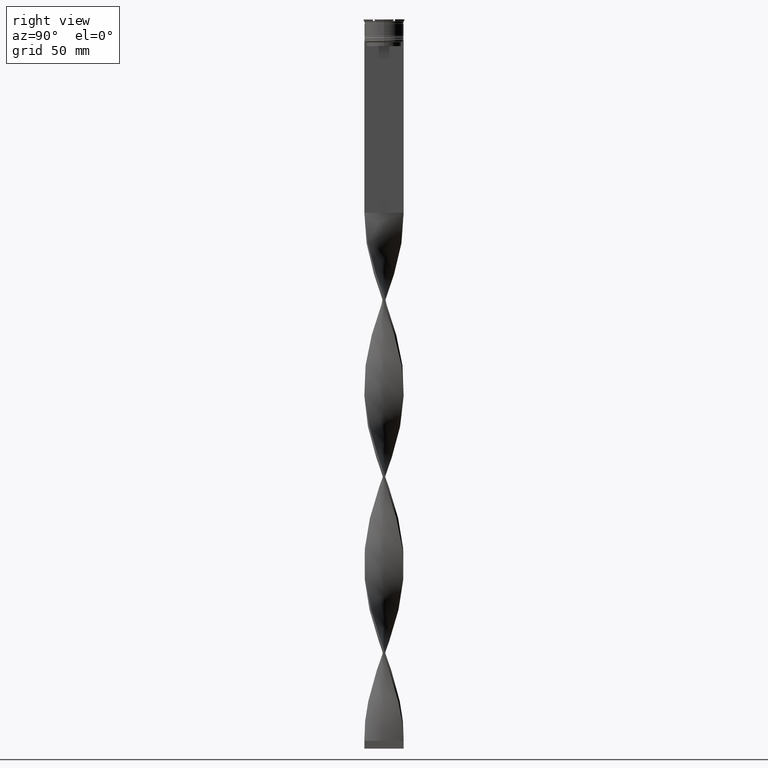
[diagram: clean part render]
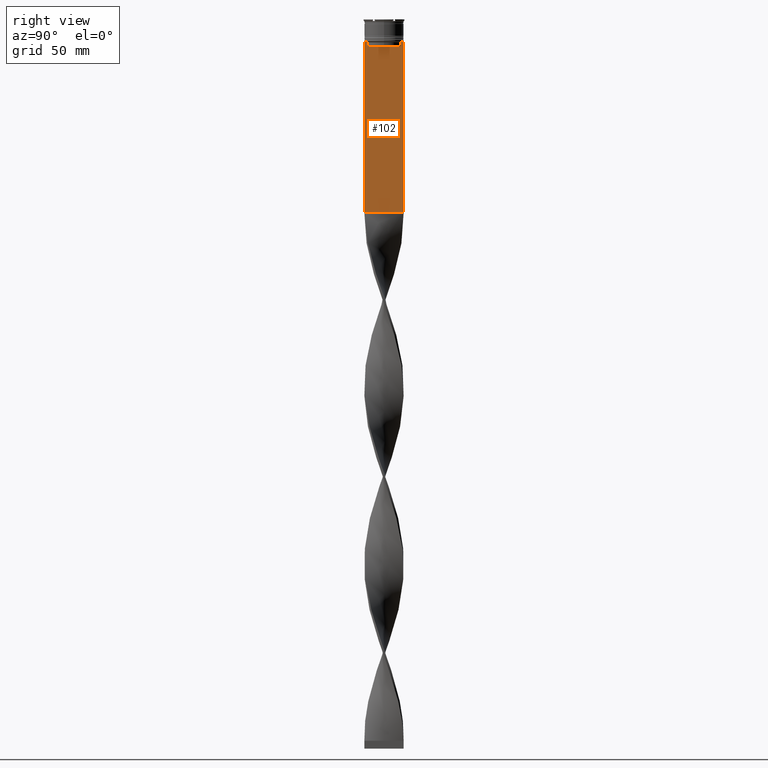
[diagram: same view with one face highlighted and labeled with its STEP entity id]
A machine part, right view. The second image highlights one B-rep face of the part: STEP entity #102.
In plain terms, the highlighted planar face has unit normal (-1, 0, 0).
Its self-contained STEP definition (entity closure, byte-faithful):
#3 = DIRECTION ( 'NONE',  ( 0.000000000000000000, 0.000000000000000000, -1.000000000000000000 ) ) ;
#58 = LINE ( 'NONE', #842, #1563 ) ;
#74 = LINE ( 'NONE', #2873, #222 ) ;
#88 = DIRECTION ( 'NONE',  ( 0.000000000000000000, -1.000000000000000000, 0.000000000000000000 ) ) ;
#102 = ADVANCED_FACE ( 'NONE', ( #147 ), #2038, .F. ) ;
#114 = VERTEX_POINT ( 'NONE', #244 ) ;
#147 = FACE_OUTER_BOUND ( 'NONE', #4185, .T. ) ;
#152 = ORIENTED_EDGE ( 'NONE', *, *, #963, .T. ) ;
#222 = VECTOR ( 'NONE', #3, 1000.000000000000000 ) ;
#224 = CARTESIAN_POINT ( 'NONE',  ( 0.7500000000000002220, -12.50000000000000000, 11.04495957273638673 ) ) ;
#244 = CARTESIAN_POINT ( 'NONE',  ( 0.7500000000000002220, -12.50000000000000000, -14.00000000000000178 ) ) ;
#345 = CARTESIAN_POINT ( 'NONE',  ( 0.7500000000000002220, 12.50000000000000000, -123.0000000000000000 ) ) ;
#349 = CARTESIAN_POINT ( 'NONE',  ( 0.7500000000000002220, -11.37530219378809093, -14.00000000000000178 ) ) ;
#351 = CARTESIAN_POINT ( 'NONE',  ( 0.7500000000000002220, -12.50000000000000000, -14.00000000000000178 ) ) ;
#394 = CARTESIAN_POINT ( 'NONE',  ( 0.7500000000000002220, -12.37729776647553059, -14.00000000000000178 ) ) ;
#518 = CARTESIAN_POINT ( 'NONE',  ( 0.7500000000000002220, 10.87416663473574197, 0.000000000000000000 ) ) ;
#539 = VERTEX_POINT ( 'NONE', #4377 ) ;
#584 = DIRECTION ( 'NONE',  ( 0.000000000000000000, -1.000000000000000000, 0.000000000000000000 ) ) ;
#628 = CARTESIAN_POINT ( 'NONE',  ( 0.7500000000000002220, 10.90000000000000213, -17.00000000000000000 ) ) ;
#681 = EDGE_CURVE ( 'NONE', #2970, #4597, #2677, .T. ) ;
#740 = VECTOR ( 'NONE', #3219, 1000.000000000000000 ) ;
#747 = ORIENTED_EDGE ( 'NONE', *, *, #2019, .T. ) ;
#753 = CARTESIAN_POINT ( 'NONE',  ( 0.7500000000000002220, -10.87416663473574197, 0.000000000000000000 ) ) ;
#842 = CARTESIAN_POINT ( 'NONE',  ( 0.7500000000000002220, -12.50000000000000000, -14.00000000000000178 ) ) ;
#868 = ORIENTED_EDGE ( 'NONE', *, *, #1578, .T. ) ;
#873 = CARTESIAN_POINT ( 'NONE',  ( 0.7500000000000002220, 12.50000000000000000, -14.00000000000000178 ) ) ;
#903 = ORIENTED_EDGE ( 'NONE', *, *, #4526, .T. ) ;
#963 = EDGE_CURVE ( 'NONE', #4164, #2970, #2384, .T. ) ;
#1057 = DIRECTION ( 'NONE',  ( 0.000000000000000000, -1.000000000000000000, 0.000000000000000000 ) ) ;
#1059 = VECTOR ( 'NONE', #3119, 1000.000000000000000 ) ;
#1091 = CARTESIAN_POINT ( 'NONE',  ( 0.7500000000000002220, 11.04122051153452055, -14.33334204648729404 ) ) ;
#1178 = VERTEX_POINT ( 'NONE', #1495 ) ;
#1233 = CARTESIAN_POINT ( 'NONE',  ( 0.7500000000000002220, -11.20826532207830439, -14.16667499063191826 ) ) ;
#1258 = ORIENTED_EDGE ( 'NONE', *, *, #1665, .T. ) ;
#1293 = DIRECTION ( 'NONE',  ( 0.000000000000000000, 1.000000000000000000, 0.000000000000000000 ) ) ;
#1440 = EDGE_CURVE ( 'NONE', #1178, #3947, #4502, .T. ) ;
#1480 = LINE ( 'NONE', #351, #740 ) ;
#1495 = CARTESIAN_POINT ( 'NONE',  ( 0.7500000000000002220, -12.50000000000000000, -123.0000000000000000 ) ) ;
#1510 = AXIS2_PLACEMENT_3D ( 'NONE', #224, #3464, #4442 ) ;
#1563 = VECTOR ( 'NONE', #88, 1000.000000000000000 ) ;
#1578 = EDGE_CURVE ( 'NONE', #539, #4164, #2931, .T. ) ;
#1656 = CARTESIAN_POINT ( 'NONE',  ( 0.7500000000000002220, -11.37530219378809093, -14.00000000000000178 ) ) ;
#1665 = EDGE_CURVE ( 'NONE', #2132, #3267, #58, .T. ) ;
#1745 = VERTEX_POINT ( 'NONE', #394 ) ;
#1755 = VECTOR ( 'NONE', #584, 1000.000000000000000 ) ;
#1800 = EDGE_CURVE ( 'NONE', #1745, #114, #4342, .T. ) ;
#1856 = CARTESIAN_POINT ( 'NONE',  ( 0.7500000000000002220, -10.87416663473574197, -14.50000000000000000 ) ) ;
#1924 = EDGE_CURVE ( 'NONE', #2132, #3947, #3983, .T. ) ;
#1967 = DIRECTION ( 'NONE',  ( 0.000000000000000000, 0.000000000000000000, -1.000000000000000000 ) ) ;
#1984 = VERTEX_POINT ( 'NONE', #349 ) ;
#2019 = EDGE_CURVE ( 'NONE', #3923, #539, #3284, .T. ) ;
#2038 = PLANE ( 'NONE',  #1510 ) ;
#2132 = VERTEX_POINT ( 'NONE', #873 ) ;
#2221 = DIRECTION ( 'NONE',  ( 0.000000000000000000, -1.000000000000000000, 0.000000000000000000 ) ) ;
#2384 = LINE ( 'NONE', #628, #1755 ) ;
#2430 = EDGE_CURVE ( 'NONE', #1984, #1745, #2548, .T. ) ;
#2440 = EDGE_CURVE ( 'NONE', #114, #1178, #74, .T. ) ;
#2467 = VECTOR ( 'NONE', #1293, 1000.000000000000000 ) ;
#2539 = CARTESIAN_POINT ( 'NONE',  ( 0.7500000000000002220, 10.87416663473574197, -14.50000000000000000 ) ) ;
#2548 = LINE ( 'NONE', #4277, #3276 ) ;
#2569 = CARTESIAN_POINT ( 'NONE',  ( 0.7500000000000002220, -12.50000000000000000, -14.00000000000000178 ) ) ;
#2677 = LINE ( 'NONE', #753, #1059 ) ;
#2685 = CARTESIAN_POINT ( 'NONE',  ( 0.7500000000000002220, 10.87416663473574019, -17.00000000000000000 ) ) ;
#2838 = VECTOR ( 'NONE', #3657, 1000.000000000000000 ) ;
#2873 = CARTESIAN_POINT ( 'NONE',  ( 0.7500000000000002220, -12.50000000000000000, 11.04495957273638673 ) ) ;
#2883 = CARTESIAN_POINT ( 'NONE',  ( 0.7500000000000002220, 11.37530219378809093, -14.00000000000000178 ) ) ;
#2931 = LINE ( 'NONE', #518, #3271 ) ;
#2970 = VERTEX_POINT ( 'NONE', #4584 ) ;
#3008 = B_SPLINE_CURVE_WITH_KNOTS ( 'NONE', 3,
 ( #1856, #4308, #1233, #1656 ),
 .UNSPECIFIED., .F., .F.,
 ( 4, 4 ),
 ( 0.05009718908159448147, 0.05081156920313959630 ),
 .UNSPECIFIED. ) ;
#3119 = DIRECTION ( 'NONE',  ( -0.000000000000000000, -0.000000000000000000, 1.000000000000000000 ) ) ;
#3206 = ORIENTED_EDGE ( 'NONE', *, *, #2430, .T. ) ;
#3219 = DIRECTION ( 'NONE',  ( 0.000000000000000000, -1.000000000000000000, 0.000000000000000000 ) ) ;
#3267 = VERTEX_POINT ( 'NONE', #4445 ) ;
#3271 = VECTOR ( 'NONE', #1967, 1000.000000000000000 ) ;
#3276 = VECTOR ( 'NONE', #1057, 1000.000000000000000 ) ;
#3284 = B_SPLINE_CURVE_WITH_KNOTS ( 'NONE', 3,
 ( #2883, #4307, #1091, #2539 ),
 .UNSPECIFIED., .F., .F.,
 ( 4, 4 ),
 ( 0.01936090553552769281, 0.02006881572333104116 ),
 .UNSPECIFIED. ) ;
#3354 = ORIENTED_EDGE ( 'NONE', *, *, #4570, .T. ) ;
#3464 = DIRECTION ( 'NONE',  ( -1.000000000000000000, 0.000000000000000000, 0.000000000000000000 ) ) ;
#3525 = ORIENTED_EDGE ( 'NONE', *, *, #1924, .F. ) ;
#3543 = CARTESIAN_POINT ( 'NONE',  ( 0.7500000000000002220, 11.37530219378809093, -14.00000000000000178 ) ) ;
#3657 = DIRECTION ( 'NONE',  ( 0.000000000000000000, 0.000000000000000000, -1.000000000000000000 ) ) ;
#3923 = VERTEX_POINT ( 'NONE', #3543 ) ;
#3947 = VERTEX_POINT ( 'NONE', #345 ) ;
#3983 = LINE ( 'NONE', #4360, #2838 ) ;
#4077 = CARTESIAN_POINT ( 'NONE',  ( 0.7500000000000002220, -12.50000000000000000, -123.0000000000000000 ) ) ;
#4164 = VERTEX_POINT ( 'NONE', #2685 ) ;
#4185 = EDGE_LOOP ( 'NONE', ( #903, #747, #868, #152, #4441, #3354, #3206, #4330, #4413, #4485, #3525, #1258 ) ) ;
#4186 = VECTOR ( 'NONE', #2221, 1000.000000000000000 ) ;
#4261 = CARTESIAN_POINT ( 'NONE',  ( 0.7500000000000002220, -10.87416663473574197, -14.50000000000000000 ) ) ;
#4277 = CARTESIAN_POINT ( 'NONE',  ( 0.7500000000000002220, -12.50000000000000000, -14.00000000000000178 ) ) ;
#4307 = CARTESIAN_POINT ( 'NONE',  ( 0.7500000000000002220, 11.20826531587977648, -14.16667499681701514 ) ) ;
#4308 = CARTESIAN_POINT ( 'NONE',  ( 0.7500000000000002220, -11.04122051801870441, -14.33334204001847567 ) ) ;
#4330 = ORIENTED_EDGE ( 'NONE', *, *, #1800, .T. ) ;
#4342 = LINE ( 'NONE', #2569, #4186 ) ;
#4360 = CARTESIAN_POINT ( 'NONE',  ( 0.7500000000000002220, 12.50000000000000000, 11.04495957273638673 ) ) ;
#4377 = CARTESIAN_POINT ( 'NONE',  ( 0.7500000000000002220, 10.87416663473574197, -14.50000000000000000 ) ) ;
#4413 = ORIENTED_EDGE ( 'NONE', *, *, #2440, .T. ) ;
#4441 = ORIENTED_EDGE ( 'NONE', *, *, #681, .T. ) ;
#4442 = DIRECTION ( 'NONE',  ( 0.000000000000000000, 0.000000000000000000, 1.000000000000000000 ) ) ;
#4445 = CARTESIAN_POINT ( 'NONE',  ( 0.7500000000000002220, 12.37729776647553059, -14.00000000000000178 ) ) ;
#4485 = ORIENTED_EDGE ( 'NONE', *, *, #1440, .T. ) ;
#4502 = LINE ( 'NONE', #4077, #2467 ) ;
#4526 = EDGE_CURVE ( 'NONE', #3267, #3923, #1480, .T. ) ;
#4570 = EDGE_CURVE ( 'NONE', #4597, #1984, #3008, .T. ) ;
#4584 = CARTESIAN_POINT ( 'NONE',  ( 0.7500000000000002220, -10.87416663473574019, -17.00000000000000000 ) ) ;
#4597 = VERTEX_POINT ( 'NONE', #4261 ) ;